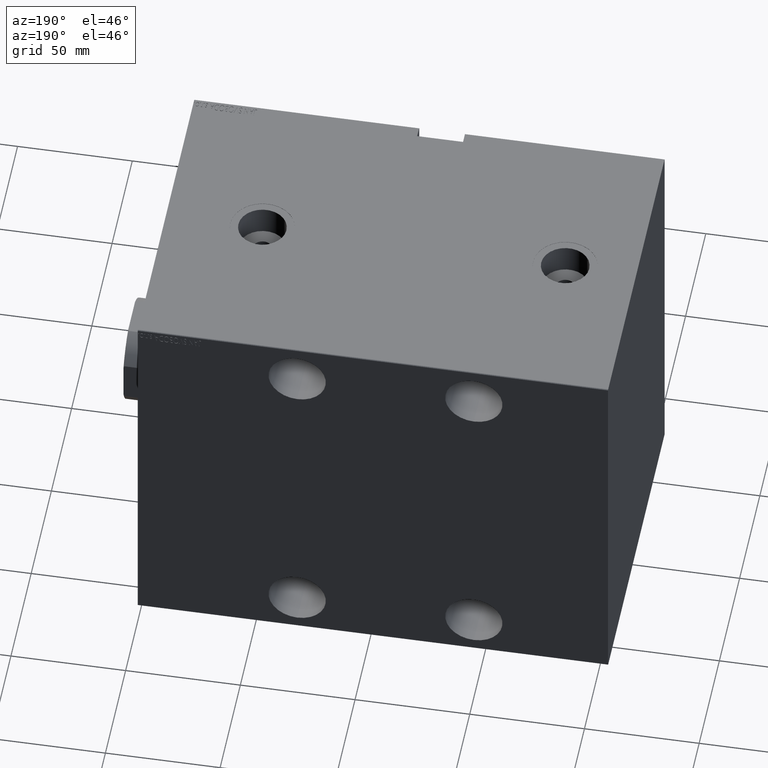
[diagram: clean part render]
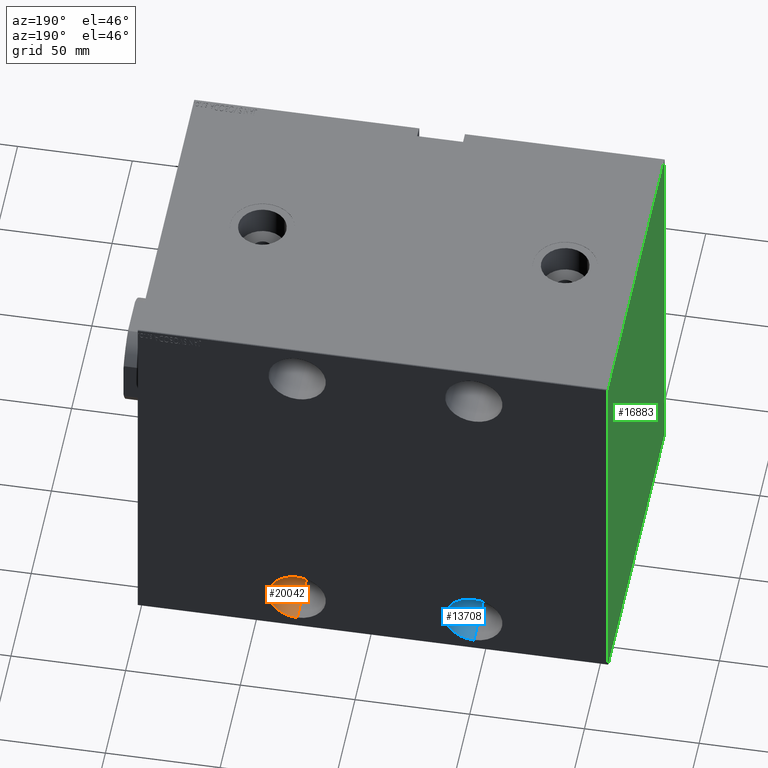
[diagram: same view with three faces highlighted in distinct colors, each labeled with its STEP entity id]
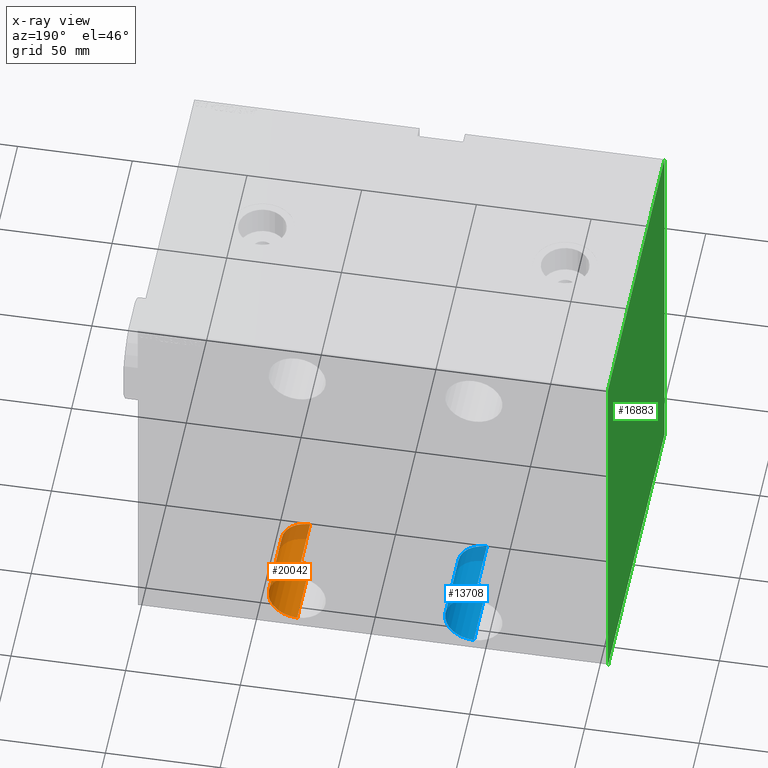
[diagram: x-ray of the same camera — body ghosted, the three highlighted faces saturated]
A machine part, auxiliary view with three faces highlighted in distinct colors.
The next image is the same camera in x-ray (body ghosted, the three faces saturated) — at least one of them is partly hidden behind the body in this view.
Their STEP definitions:

[orange] entity #20042 — the highlighted cylindrical surface (edge-blend (fillet) strip) has radius 12.5 mm, axis along (0, 1, -0).
#484 = CARTESIAN_POINT ( 'NONE',  ( 69.49999999999998579, -37.99999999999999289, -67.50000000000004263 ) ) ;
#487 = CARTESIAN_POINT ( 'NONE',  ( 69.49999999999998579, -69.99999999999998579, -55.00000000000004974 ) ) ;
#1483 = CARTESIAN_POINT ( 'NONE',  ( 69.49999999999998579, -69.99999999999998579, -67.50000000000004263 ) ) ;
#4569 = CARTESIAN_POINT ( 'NONE',  ( 69.49999999999998579, -37.99999999999999289, -80.00000000000004263 ) ) ;
#4865 = CARTESIAN_POINT ( 'NONE',  ( 69.49999999999998579, -37.99999999999999289, -80.00000000000004263 ) ) ;
#5990 = LINE ( 'NONE', #6436, #9658 ) ;
#6436 = CARTESIAN_POINT ( 'NONE',  ( 69.49999999999998579, -37.99999999999999289, -55.00000000000004974 ) ) ;
#6790 = FACE_OUTER_BOUND ( 'NONE', #37664, .T. ) ;
#9658 = VECTOR ( 'NONE', #30225, 1000.000000000000000 ) ;
#11501 = ORIENTED_EDGE ( 'NONE', *, *, #38971, .F. ) ;
#12714 = DIRECTION ( 'NONE',  ( 0.000000000000000000, 0.000000000000000000, -1.000000000000000000 ) ) ;
#12975 = EDGE_CURVE ( 'NONE', #42544, #23323, #13227, .T. ) ;
#13227 = CIRCLE ( 'NONE', #27557, 12.49999999999999645 ) ;
#13321 = CYLINDRICAL_SURFACE ( 'NONE', #38061, 12.49999999999999645 ) ;
#13745 = DIRECTION ( 'NONE',  ( 0.000000000000000000, 0.000000000000000000, -1.000000000000000000 ) ) ;
#15174 = DIRECTION ( 'NONE',  ( 0.000000000000000000, 0.000000000000000000, -1.000000000000000000 ) ) ;
#18743 = VERTEX_POINT ( 'NONE', #24617 ) ;
#19221 = CARTESIAN_POINT ( 'NONE',  ( 69.49999999999998579, -37.99999999999999289, -67.50000000000004263 ) ) ;
#19678 = DIRECTION ( 'NONE',  ( 0.000000000000000000, -1.000000000000000000, 0.000000000000000000 ) ) ;
#19722 = ORIENTED_EDGE ( 'NONE', *, *, #23821, .T. ) ;
#20042 = ADVANCED_FACE ( 'NONE', ( #6790 ), #13321, .F. ) ;
#21526 = ORIENTED_EDGE ( 'NONE', *, *, #33296, .T. ) ;
#22035 = CARTESIAN_POINT ( 'NONE',  ( 69.49999999999998579, -37.99999999999999289, -55.00000000000004974 ) ) ;
#23323 = VERTEX_POINT ( 'NONE', #4569 ) ;
#23821 = EDGE_CURVE ( 'NONE', #37224, #18743, #29475, .T. ) ;
#24617 = CARTESIAN_POINT ( 'NONE',  ( 69.49999999999998579, -69.99999999999998579, -80.00000000000004263 ) ) ;
#27557 = AXIS2_PLACEMENT_3D ( 'NONE', #19221, #19678, #12714 ) ;
#28435 = DIRECTION ( 'NONE',  ( 0.000000000000000000, -1.000000000000000000, 0.000000000000000000 ) ) ;
#29475 = CIRCLE ( 'NONE', #36629, 12.49999999999999645 ) ;
#30225 = DIRECTION ( 'NONE',  ( -0.000000000000000000, -1.000000000000000000, -0.000000000000000000 ) ) ;
#31718 = ORIENTED_EDGE ( 'NONE', *, *, #12975, .F. ) ;
#33296 = EDGE_CURVE ( 'NONE', #42544, #37224, #5990, .T. ) ;
#36629 = AXIS2_PLACEMENT_3D ( 'NONE', #1483, #28435, #15174 ) ;
#37076 = DIRECTION ( 'NONE',  ( -0.000000000000000000, -1.000000000000000000, -0.000000000000000000 ) ) ;
#37224 = VERTEX_POINT ( 'NONE', #487 ) ;
#37664 = EDGE_LOOP ( 'NONE', ( #31718, #21526, #19722, #11501 ) ) ;
#38061 = AXIS2_PLACEMENT_3D ( 'NONE', #484, #37076, #13745 ) ;
#38971 = EDGE_CURVE ( 'NONE', #23323, #18743, #42557, .T. ) ;
#39058 = VECTOR ( 'NONE', #39182, 1000.000000000000000 ) ;
#39182 = DIRECTION ( 'NONE',  ( -0.000000000000000000, -1.000000000000000000, -0.000000000000000000 ) ) ;
#42544 = VERTEX_POINT ( 'NONE', #22035 ) ;
#42557 = LINE ( 'NONE', #4865, #39058 ) ;

[blue] entity #13708 — the highlighted cylindrical surface (edge-blend (fillet) strip) has radius 12.5 mm, axis along (0, 1, -0).
#188 = CARTESIAN_POINT ( 'NONE',  ( 146.5000000000000284, -69.99999999999998579, -55.00000000000004974 ) ) ;
#560 = DIRECTION ( 'NONE',  ( 0.000000000000000000, -1.000000000000000000, 0.000000000000000000 ) ) ;
#1678 = AXIS2_PLACEMENT_3D ( 'NONE', #31950, #26126, #1874 ) ;
#1835 = CARTESIAN_POINT ( 'NONE',  ( 146.5000000000000284, -69.99999999999998579, -80.00000000000007105 ) ) ;
#1874 = DIRECTION ( 'NONE',  ( 0.000000000000000000, 0.000000000000000000, -1.000000000000000000 ) ) ;
#3939 = DIRECTION ( 'NONE',  ( 0.000000000000000000, 0.000000000000000000, -1.000000000000000000 ) ) ;
#5204 = VERTEX_POINT ( 'NONE', #17084 ) ;
#5731 = LINE ( 'NONE', #18990, #25872 ) ;
#9803 = DIRECTION ( 'NONE',  ( -0.000000000000000000, -1.000000000000000000, -0.000000000000000000 ) ) ;
#10223 = EDGE_CURVE ( 'NONE', #40140, #5204, #11699, .T. ) ;
#11699 = CIRCLE ( 'NONE', #1678, 12.50000000000001066 ) ;
#11805 = ORIENTED_EDGE ( 'NONE', *, *, #27088, .F. ) ;
#12481 = DIRECTION ( 'NONE',  ( -0.000000000000000000, -1.000000000000000000, -0.000000000000000000 ) ) ;
#13112 = VERTEX_POINT ( 'NONE', #1835 ) ;
#13708 = ADVANCED_FACE ( 'NONE', ( #30223 ), #40080, .F. ) ;
#14504 = VECTOR ( 'NONE', #31063, 1000.000000000000000 ) ;
#15712 = EDGE_LOOP ( 'NONE', ( #17593, #30535, #34968, #11805 ) ) ;
#17084 = CARTESIAN_POINT ( 'NONE',  ( 146.5000000000000284, -37.99999999999999289, -80.00000000000007105 ) ) ;
#17593 = ORIENTED_EDGE ( 'NONE', *, *, #10223, .F. ) ;
#17653 = VERTEX_POINT ( 'NONE', #188 ) ;
#18990 = CARTESIAN_POINT ( 'NONE',  ( 146.5000000000000284, -37.99999999999999289, -55.00000000000005684 ) ) ;
#19690 = CARTESIAN_POINT ( 'NONE',  ( 146.5000000000000284, -37.99999999999999289, -67.50000000000005684 ) ) ;
#23122 = EDGE_CURVE ( 'NONE', #40140, #17653, #5731, .T. ) ;
#24122 = CARTESIAN_POINT ( 'NONE',  ( 146.5000000000000284, -37.99999999999999289, -55.00000000000004974 ) ) ;
#25872 = VECTOR ( 'NONE', #12481, 1000.000000000000000 ) ;
#26004 = AXIS2_PLACEMENT_3D ( 'NONE', #38457, #560, #3939 ) ;
#26070 = EDGE_CURVE ( 'NONE', #17653, #13112, #30300, .T. ) ;
#26126 = DIRECTION ( 'NONE',  ( 0.000000000000000000, -1.000000000000000000, 0.000000000000000000 ) ) ;
#27050 = LINE ( 'NONE', #30408, #14504 ) ;
#27088 = EDGE_CURVE ( 'NONE', #5204, #13112, #27050, .T. ) ;
#28980 = AXIS2_PLACEMENT_3D ( 'NONE', #19690, #9803, #43893 ) ;
#30223 = FACE_OUTER_BOUND ( 'NONE', #15712, .T. ) ;
#30300 = CIRCLE ( 'NONE', #26004, 12.50000000000001066 ) ;
#30408 = CARTESIAN_POINT ( 'NONE',  ( 146.5000000000000284, -37.99999999999999289, -80.00000000000007105 ) ) ;
#30535 = ORIENTED_EDGE ( 'NONE', *, *, #23122, .T. ) ;
#31063 = DIRECTION ( 'NONE',  ( -0.000000000000000000, -1.000000000000000000, -0.000000000000000000 ) ) ;
#31950 = CARTESIAN_POINT ( 'NONE',  ( 146.5000000000000284, -37.99999999999999289, -67.50000000000005684 ) ) ;
#34968 = ORIENTED_EDGE ( 'NONE', *, *, #26070, .T. ) ;
#38457 = CARTESIAN_POINT ( 'NONE',  ( 146.5000000000000284, -69.99999999999998579, -67.50000000000005684 ) ) ;
#40080 = CYLINDRICAL_SURFACE ( 'NONE', #28980, 12.50000000000001066 ) ;
#40140 = VERTEX_POINT ( 'NONE', #24122 ) ;
#43893 = DIRECTION ( 'NONE',  ( 0.000000000000000000, 0.000000000000000000, -1.000000000000000000 ) ) ;

[green] entity #16883 — the highlighted planar face has unit normal (-1, 0, 0).
#646 = ORIENTED_EDGE ( 'NONE', *, *, #21093, .T. ) ;
#938 = VERTEX_POINT ( 'NONE', #3357 ) ;
#1719 = LINE ( 'NONE', #15178, #38253 ) ;
#1838 = LINE ( 'NONE', #29895, #10386 ) ;
#2413 = VECTOR ( 'NONE', #37232, 1000.000000000000000 ) ;
#2901 = AXIS2_PLACEMENT_3D ( 'NONE', #37639, #6924, #20625 ) ;
#3357 = CARTESIAN_POINT ( 'NONE',  ( 205.0000000000000000, 70.00000000000002842, -84.70000000000001705 ) ) ;
#4325 = VECTOR ( 'NONE', #37298, 1000.000000000000000 ) ;
#4691 = CARTESIAN_POINT ( 'NONE',  ( 205.0000000000000000, -69.99999999999998579, -84.69999999999996021 ) ) ;
#4999 = ORIENTED_EDGE ( 'NONE', *, *, #32960, .T. ) ;
#6742 = CARTESIAN_POINT ( 'NONE',  ( 205.0000000000000000, 70.00000000000002842, 85.00000000000001421 ) ) ;
#6924 = DIRECTION ( 'NONE',  ( 1.000000000000000000, 0.000000000000000000, -0.000000000000000000 ) ) ;
#7592 = VECTOR ( 'NONE', #33454, 1000.000000000000000 ) ;
#7746 = CARTESIAN_POINT ( 'NONE',  ( 205.0000000000000000, -69.99999999999998579, 84.70000000000001705 ) ) ;
#7794 = PLANE ( 'NONE',  #2901 ) ;
#8363 = CARTESIAN_POINT ( 'NONE',  ( 205.0000000000000000, -77.34999999999189413, 77.35000000000979981 ) ) ;
#8625 = DIRECTION ( 'NONE',  ( -0.000000000000000000, 0.7071067811864821806, -0.7071067811866129649 ) ) ;
#9632 = VECTOR ( 'NONE', #26473, 1000.000000000000114 ) ;
#9668 = LINE ( 'NONE', #23379, #7592 ) ;
#10386 = VECTOR ( 'NONE', #12383, 1000.000000000000000 ) ;
#10757 = LINE ( 'NONE', #6742, #2413 ) ;
#11358 = ORIENTED_EDGE ( 'NONE', *, *, #17071, .T. ) ;
#12383 = DIRECTION ( 'NONE',  ( 0.000000000000000000, 0.000000000000000000, 1.000000000000000000 ) ) ;
#12532 = VERTEX_POINT ( 'NONE', #4691 ) ;
#12775 = CARTESIAN_POINT ( 'NONE',  ( 205.0000000000000000, 77.35000000000485443, 77.34999999999412523 ) ) ;
#13468 = EDGE_CURVE ( 'NONE', #14780, #17207, #29836, .T. ) ;
#14770 = VERTEX_POINT ( 'NONE', #15374 ) ;
#14780 = VERTEX_POINT ( 'NONE', #39141 ) ;
#15178 = CARTESIAN_POINT ( 'NONE',  ( 205.0000000000000000, 77.34999999999190834, -77.35000000000981402 ) ) ;
#15374 = CARTESIAN_POINT ( 'NONE',  ( 205.0000000000000000, -69.70000000000000284, -85.00000000000000000 ) ) ;
#15587 = CARTESIAN_POINT ( 'NONE',  ( 205.0000000000000000, -77.35000000000646025, -77.34999999999214992 ) ) ;
#16171 = EDGE_CURVE ( 'NONE', #36300, #12532, #17343, .T. ) ;
#16883 = ADVANCED_FACE ( 'NONE', ( #41672 ), #7794, .T. ) ;
#17071 = EDGE_CURVE ( 'NONE', #26334, #36300, #24985, .T. ) ;
#17207 = VERTEX_POINT ( 'NONE', #32364 ) ;
#17343 = LINE ( 'NONE', #27683, #4325 ) ;
#18731 = LINE ( 'NONE', #15587, #40879 ) ;
#20625 = DIRECTION ( 'NONE',  ( -0.000000000000000000, 0.000000000000000000, -1.000000000000000000 ) ) ;
#20813 = ORIENTED_EDGE ( 'NONE', *, *, #32306, .T. ) ;
#21093 = EDGE_CURVE ( 'NONE', #12532, #14770, #18731, .T. ) ;
#21481 = DIRECTION ( 'NONE',  ( -0.000000000000000000, 0.7071067811866293962, 0.7071067811864657493 ) ) ;
#23379 = CARTESIAN_POINT ( 'NONE',  ( 205.0000000000000000, -69.99999999999998579, -85.00000000000000000 ) ) ;
#23457 = CARTESIAN_POINT ( 'NONE',  ( 205.0000000000000000, -69.69999999999993179, 85.00000000000000000 ) ) ;
#23917 = ORIENTED_EDGE ( 'NONE', *, *, #13468, .T. ) ;
#24041 = CARTESIAN_POINT ( 'NONE',  ( 205.0000000000000000, 69.69999999999997442, -85.00000000000000000 ) ) ;
#24479 = EDGE_LOOP ( 'NONE', ( #39271, #20813, #4999, #23917, #29821, #11358, #25564, #646 ) ) ;
#24985 = LINE ( 'NONE', #8363, #40172 ) ;
#25203 = DIRECTION ( 'NONE',  ( -0.000000000000000000, -0.7071067811866293962, -0.7071067811864657493 ) ) ;
#25564 = ORIENTED_EDGE ( 'NONE', *, *, #16171, .T. ) ;
#26334 = VERTEX_POINT ( 'NONE', #23457 ) ;
#26473 = DIRECTION ( 'NONE',  ( -0.000000000000000000, -0.7071067811864985009, 0.7071067811865965336 ) ) ;
#27683 = CARTESIAN_POINT ( 'NONE',  ( 205.0000000000000000, -69.99999999999998579, 85.00000000000000000 ) ) ;
#29821 = ORIENTED_EDGE ( 'NONE', *, *, #30979, .T. ) ;
#29836 = LINE ( 'NONE', #12775, #9632 ) ;
#29895 = CARTESIAN_POINT ( 'NONE',  ( 205.0000000000000000, 70.00000000000002842, -85.00000000000000000 ) ) ;
#30979 = EDGE_CURVE ( 'NONE', #17207, #26334, #10757, .T. ) ;
#31872 = VERTEX_POINT ( 'NONE', #24041 ) ;
#32306 = EDGE_CURVE ( 'NONE', #31872, #938, #1719, .T. ) ;
#32364 = CARTESIAN_POINT ( 'NONE',  ( 205.0000000000000000, 69.70000000000004547, 85.00000000000001421 ) ) ;
#32960 = EDGE_CURVE ( 'NONE', #938, #14780, #1838, .T. ) ;
#33454 = DIRECTION ( 'NONE',  ( 0.000000000000000000, 1.000000000000000000, 0.000000000000000000 ) ) ;
#36300 = VERTEX_POINT ( 'NONE', #7746 ) ;
#36496 = EDGE_CURVE ( 'NONE', #14770, #31872, #9668, .T. ) ;
#37232 = DIRECTION ( 'NONE',  ( 0.000000000000000000, -1.000000000000000000, -9.912705577010325549E-17 ) ) ;
#37298 = DIRECTION ( 'NONE',  ( 0.000000000000000000, 0.000000000000000000, -1.000000000000000000 ) ) ;
#37639 = CARTESIAN_POINT ( 'NONE',  ( 205.0000000000000000, 0.000000000000000000, 0.000000000000000000 ) ) ;
#38253 = VECTOR ( 'NONE', #21481, 1000.000000000000000 ) ;
#39141 = CARTESIAN_POINT ( 'NONE',  ( 205.0000000000000000, 70.00000000000002842, 84.69999999999998863 ) ) ;
#39271 = ORIENTED_EDGE ( 'NONE', *, *, #36496, .T. ) ;
#40172 = VECTOR ( 'NONE', #25203, 1000.000000000000000 ) ;
#40879 = VECTOR ( 'NONE', #8625, 1000.000000000000000 ) ;
#41672 = FACE_OUTER_BOUND ( 'NONE', #24479, .T. ) ;